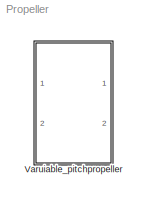
MODEL Propeller
KIND model
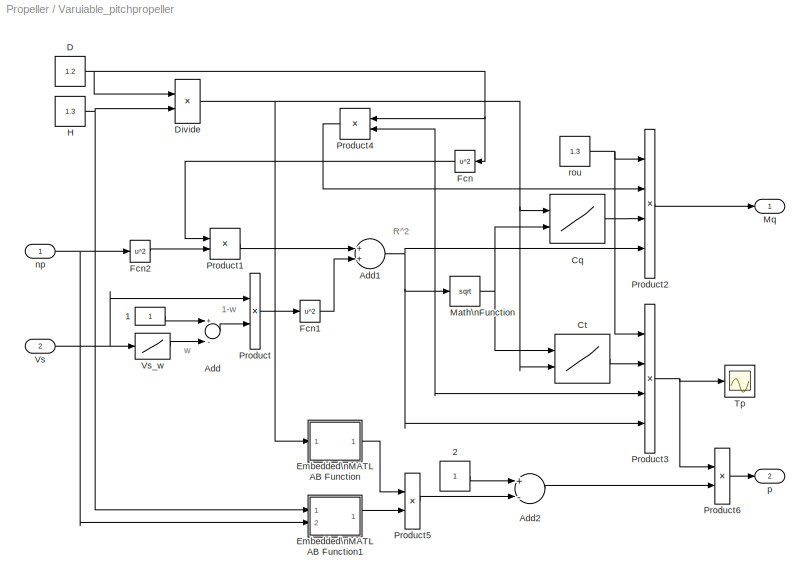
BLOCK [SubSystem] Varuiable_pitchpropeller
  Ports = [2, 2]
  RequestExecContextInheritance = off
  SID = 1
BLOCK [Constant] Varuiable_pitchpropeller/1
  SID = 4
BLOCK [Constant] Varuiable_pitchpropeller/2
  SID = 5
BLOCK [Sum] Varuiable_pitchpropeller/Add
  InputSameDT = off
  Inputs = +-
  OutDataTypeStr = Inherit: Inherit via internal rule
  Ports = [2, 1]
  SID = 6
  SaturateOnIntegerOverflow = off
BLOCK [Sum] Varuiable_pitchpropeller/Add1
  InputSameDT = off
  OutDataTypeStr = Inherit: Inherit via internal rule
  Ports = [2, 1]
  SID = 7
  SaturateOnIntegerOverflow = off
BLOCK [Sum] Varuiable_pitchpropeller/Add2
  InputSameDT = off
  Inputs = +-
  OutDataTypeStr = Inherit: Inherit via internal rule
  Ports = [2, 1]
  SID = 8
  SaturateOnIntegerOverflow = off
BLOCK [Lookup2D] Varuiable_pitchpropeller/Cq
  ColumnIndex = [1:3]
  InputSameDT = off
  RowIndex = [1:3]
  SID = 9
  SaturateOnIntegerOverflow = off
  Table = [4 5 6;16 19 20;10 18 23]
BLOCK [Lookup2D] Varuiable_pitchpropeller/Ct
  ColumnIndex = [1:3]
  InputSameDT = off
  RowIndex = [1:3]
  SID = 10
  SaturateOnIntegerOverflow = off
  Table = [4 5 6;16 19 20;10 18 23]
BLOCK [Constant] Varuiable_pitchpropeller/D
  SID = 11
  Value = 1.2
BLOCK [Product] Varuiable_pitchpropeller/Divide
  InputSameDT = off
  Inputs = /*
  OutDataTypeStr = Inherit: Inherit via internal rule
  Ports = [2, 1]
  RndMeth = Floor
  SID = 12
  SaturateOnIntegerOverflow = off
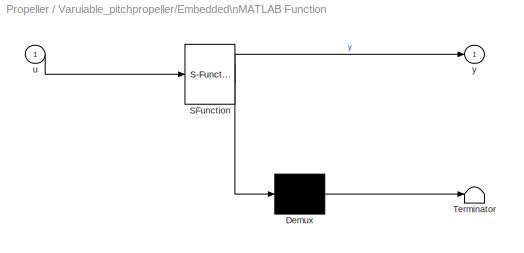
BLOCK [SubSystem] Varuiable_pitchpropeller/Embedded\nMATLAB Function
  ErrorFcn = Stateflow.Translate.translate
  PermitHierarchicalResolution = ExplicitOnly
  Ports = [1, 1]
  RequestExecContextInheritance = off
  SFBlockType = MATLAB Function
  SID = 13
  TreatAsAtomicUnit = on
BLOCK [Demux] Varuiable_pitchpropeller/Embedded\nMATLAB Function/ Demux 
  Outputs = 1
  Ports = [1, 1]
  SID = 13::7
BLOCK [S-Function] Varuiable_pitchpropeller/Embedded\nMATLAB Function/ SFunction 
  EnableBusSupport = off
  FunctionName = sf_sfun
  PortCounts = [1 2]
  Ports = [1, 2]
  SID = 13::6
  Tag = Stateflow S-Function Propeller 2
BLOCK [Terminator] Varuiable_pitchpropeller/Embedded\nMATLAB Function/ Terminator 
  SID = 13::8
BLOCK [Inport] Varuiable_pitchpropeller/Embedded\nMATLAB Function/u
  IconDisplay = Port number
  SID = 13::1
BLOCK [Outport] Varuiable_pitchpropeller/Embedded\nMATLAB Function/y
  IconDisplay = Port number
  SID = 13::5
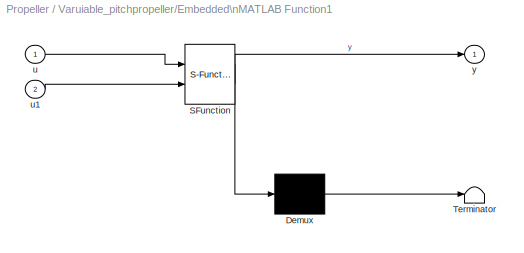
BLOCK [SubSystem] Varuiable_pitchpropeller/Embedded\nMATLAB Function1
  ErrorFcn = Stateflow.Translate.translate
  PermitHierarchicalResolution = ExplicitOnly
  Ports = [2, 1]
  RequestExecContextInheritance = off
  SFBlockType = MATLAB Function
  SID = 14
  TreatAsAtomicUnit = on
BLOCK [Demux] Varuiable_pitchpropeller/Embedded\nMATLAB Function1/ Demux 
  Outputs = 1
  Ports = [1, 1]
  SID = 14::8
BLOCK [S-Function] Varuiable_pitchpropeller/Embedded\nMATLAB Function1/ SFunction 
  EnableBusSupport = off
  FunctionName = sf_sfun
  PortCounts = [2 2]
  Ports = [2, 2]
  SID = 14::7
  Tag = Stateflow S-Function Propeller 1
BLOCK [Terminator] Varuiable_pitchpropeller/Embedded\nMATLAB Function1/ Terminator 
  SID = 14::9
BLOCK [Inport] Varuiable_pitchpropeller/Embedded\nMATLAB Function1/u
  IconDisplay = Port number
  SID = 14::1
BLOCK [Inport] Varuiable_pitchpropeller/Embedded\nMATLAB Function1/u1
  IconDisplay = Port number
  Port = 2
  SID = 14::2
BLOCK [Outport] Varuiable_pitchpropeller/Embedded\nMATLAB Function1/y
  IconDisplay = Port number
  SID = 14::6
BLOCK [Fcn] Varuiable_pitchpropeller/Fcn
  Expr = u^2
  SID = 15
BLOCK [Fcn] Varuiable_pitchpropeller/Fcn1
  Expr = u^2
  SID = 16
BLOCK [Fcn] Varuiable_pitchpropeller/Fcn2
  Expr = u^2
  SID = 17
BLOCK [Constant] Varuiable_pitchpropeller/H
  SID = 18
  Value = 1.3
BLOCK [Math] Varuiable_pitchpropeller/Math\nFunction
  Operator = sqrt
  Ports = [1, 1]
  SID = 19
BLOCK [Outport] Varuiable_pitchpropeller/Mq
  IconDisplay = Port number
  SID = 30
BLOCK [Product] Varuiable_pitchpropeller/Product
  InputSameDT = off
  OutDataTypeStr = Inherit: Inherit via internal rule
  Ports = [2, 1]
  SID = 20
  SaturateOnIntegerOverflow = off
BLOCK [Product] Varuiable_pitchpropeller/Product1
  InputSameDT = off
  OutDataTypeStr = Inherit: Inherit via internal rule
  Ports = [2, 1]
  SID = 21
  SaturateOnIntegerOverflow = off
BLOCK [Product] Varuiable_pitchpropeller/Product2
  InputSameDT = off
  Inputs = 4
  OutDataTypeStr = Inherit: Inherit via internal rule
  Ports = [4, 1]
  SID = 22
  SaturateOnIntegerOverflow = off
BLOCK [Product] Varuiable_pitchpropeller/Product3
  InputSameDT = off
  Inputs = 4
  OutDataTypeStr = Inherit: Inherit via internal rule
  Ports = [4, 1]
  SID = 23
  SaturateOnIntegerOverflow = off
BLOCK [Product] Varuiable_pitchpropeller/Product4
  InputSameDT = off
  OutDataTypeStr = Inherit: Inherit via internal rule
  Ports = [2, 1]
  SID = 24
  SaturateOnIntegerOverflow = off
BLOCK [Product] Varuiable_pitchpropeller/Product5
  InputSameDT = off
  OutDataTypeStr = Inherit: Inherit via internal rule
  Ports = [2, 1]
  SID = 25
  SaturateOnIntegerOverflow = off
BLOCK [Product] Varuiable_pitchpropeller/Product6
  InputSameDT = off
  OutDataTypeStr = Inherit: Inherit via internal rule
  Ports = [2, 1]
  SID = 26
  SaturateOnIntegerOverflow = off
BLOCK [Scope] Varuiable_pitchpropeller/Tp
  DataFormat = StructureWithTime
  Floating = off
  NumInputPorts = 1
  Ports = [1]
  SID = 27
  SampleTime = 0
  SaveName = ScopeData1
  ShowLegends = off
BLOCK [Inport] Varuiable_pitchpropeller/Vs
  IconDisplay = Port number
  Port = 2
  SID = 3
BLOCK [Lookup] Varuiable_pitchpropeller/Vs_w
  InputValues = [-5:5]
  SID = 28
  SaturateOnIntegerOverflow = off
  Table = tanh([-5:5])
BLOCK [Inport] Varuiable_pitchpropeller/np
  IconDisplay = Port number
  SID = 2
BLOCK [Outport] Varuiable_pitchpropeller/p
  IconDisplay = Port number
  Port = 2
  SID = 31
BLOCK [Constant] Varuiable_pitchpropeller/rou
  SID = 29
  Value = 1.3
ANNOTATION Varuiable_pitchpropeller: 1-w
ANNOTATION Varuiable_pitchpropeller: R^2
ANNOTATION Varuiable_pitchpropeller: w
LINE Varuiable_pitchpropeller/1:1 -> Varuiable_pitchpropeller/Add:1
LINE Varuiable_pitchpropeller/2:1 -> Varuiable_pitchpropeller/Add2:1
NET Varuiable_pitchpropeller/Add1:1 -> Varuiable_pitchpropeller/Math\nFunction:1, Varuiable_pitchpropeller/Product2:4, Varuiable_pitchpropeller/Product3:4
LINE Varuiable_pitchpropeller/Add2:1 -> Varuiable_pitchpropeller/Product6:2
LINE Varuiable_pitchpropeller/Add:1 -> Varuiable_pitchpropeller/Product:2
LINE Varuiable_pitchpropeller/Cq:1 -> Varuiable_pitchpropeller/Product2:3
LINE Varuiable_pitchpropeller/Ct:1 -> Varuiable_pitchpropeller/Product3:2
NET Varuiable_pitchpropeller/D:1 -> Varuiable_pitchpropeller/Divide:1, Varuiable_pitchpropeller/Fcn:1, Varuiable_pitchpropeller/Product4:1
NET Varuiable_pitchpropeller/Divide:1 -> Varuiable_pitchpropeller/Cq:1, Varuiable_pitchpropeller/Ct:2, Varuiable_pitchpropeller/Embedded\nMATLAB Function:1
LINE Varuiable_pitchpropeller/Embedded\nMATLAB Function/ Demux :1 -> Varuiable_pitchpropeller/Embedded\nMATLAB Function/ Terminator :1
LINE Varuiable_pitchpropeller/Embedded\nMATLAB Function/ SFunction :1 -> Varuiable_pitchpropeller/Embedded\nMATLAB Function/ Demux :1
LINE Varuiable_pitchpropeller/Embedded\nMATLAB Function/ SFunction :2 -> Varuiable_pitchpropeller/Embedded\nMATLAB Function/y:1
LINE Varuiable_pitchpropeller/Embedded\nMATLAB Function/u:1 -> Varuiable_pitchpropeller/Embedded\nMATLAB Function/ SFunction :1
LINE Varuiable_pitchpropeller/Embedded\nMATLAB Function1/ Demux :1 -> Varuiable_pitchpropeller/Embedded\nMATLAB Function1/ Terminator :1
LINE Varuiable_pitchpropeller/Embedded\nMATLAB Function1/ SFunction :1 -> Varuiable_pitchpropeller/Embedded\nMATLAB Function1/ Demux :1
LINE Varuiable_pitchpropeller/Embedded\nMATLAB Function1/ SFunction :2 -> Varuiable_pitchpropeller/Embedded\nMATLAB Function1/y:1
LINE Varuiable_pitchpropeller/Embedded\nMATLAB Function1/u1:1 -> Varuiable_pitchpropeller/Embedded\nMATLAB Function1/ SFunction :2
LINE Varuiable_pitchpropeller/Embedded\nMATLAB Function1/u:1 -> Varuiable_pitchpropeller/Embedded\nMATLAB Function1/ SFunction :1
LINE Varuiable_pitchpropeller/Embedded\nMATLAB Function1:1 -> Varuiable_pitchpropeller/Product5:2
LINE Varuiable_pitchpropeller/Embedded\nMATLAB Function:1 -> Varuiable_pitchpropeller/Product5:1
LINE Varuiable_pitchpropeller/Fcn1:1 -> Varuiable_pitchpropeller/Add1:2
LINE Varuiable_pitchpropeller/Fcn2:1 -> Varuiable_pitchpropeller/Product1:2
NET Varuiable_pitchpropeller/Fcn:1 -> Varuiable_pitchpropeller/Product1:1, Varuiable_pitchpropeller/Product3:3, Varuiable_pitchpropeller/Product4:2
NET Varuiable_pitchpropeller/H:1 -> Varuiable_pitchpropeller/Divide:2, Varuiable_pitchpropeller/Embedded\nMATLAB Function1:1
NET Varuiable_pitchpropeller/Math\nFunction:1 -> Varuiable_pitchpropeller/Cq:2, Varuiable_pitchpropeller/Ct:1
LINE Varuiable_pitchpropeller/Product1:1 -> Varuiable_pitchpropeller/Add1:1
LINE Varuiable_pitchpropeller/Product2:1 -> Varuiable_pitchpropeller/Mq:1
NET Varuiable_pitchpropeller/Product3:1 -> Varuiable_pitchpropeller/Product6:1, Varuiable_pitchpropeller/Tp:1
LINE Varuiable_pitchpropeller/Product4:1 -> Varuiable_pitchpropeller/Product2:2
LINE Varuiable_pitchpropeller/Product5:1 -> Varuiable_pitchpropeller/Add2:2
LINE Varuiable_pitchpropeller/Product6:1 -> Varuiable_pitchpropeller/p:1
LINE Varuiable_pitchpropeller/Product:1 -> Varuiable_pitchpropeller/Fcn1:1
NET Varuiable_pitchpropeller/Vs:1 -> Varuiable_pitchpropeller/Product:1, Varuiable_pitchpropeller/Vs_w:1
LINE Varuiable_pitchpropeller/Vs_w:1 -> Varuiable_pitchpropeller/Add:2
NET Varuiable_pitchpropeller/np:1 -> Varuiable_pitchpropeller/Embedded\nMATLAB Function1:2, Varuiable_pitchpropeller/Fcn2:1
NET Varuiable_pitchpropeller/rou:1 -> Varuiable_pitchpropeller/Product2:1, Varuiable_pitchpropeller/Product3:1
note: NET lines group one-source signal fan-out (src -> all destinations, sorted); 1:1 wires keep LINE
CHART Varuiable_pitchpropeller/Embedded\nMATLAB Function1 states=1 transitions=1
  STATE_LABEL 'eML_blk_kernel()'
CHART Varuiable_pitchpropeller/Embedded\nMATLAB Function states=1 transitions=1
  STATE_LABEL 'eML_blk_kernel()'
